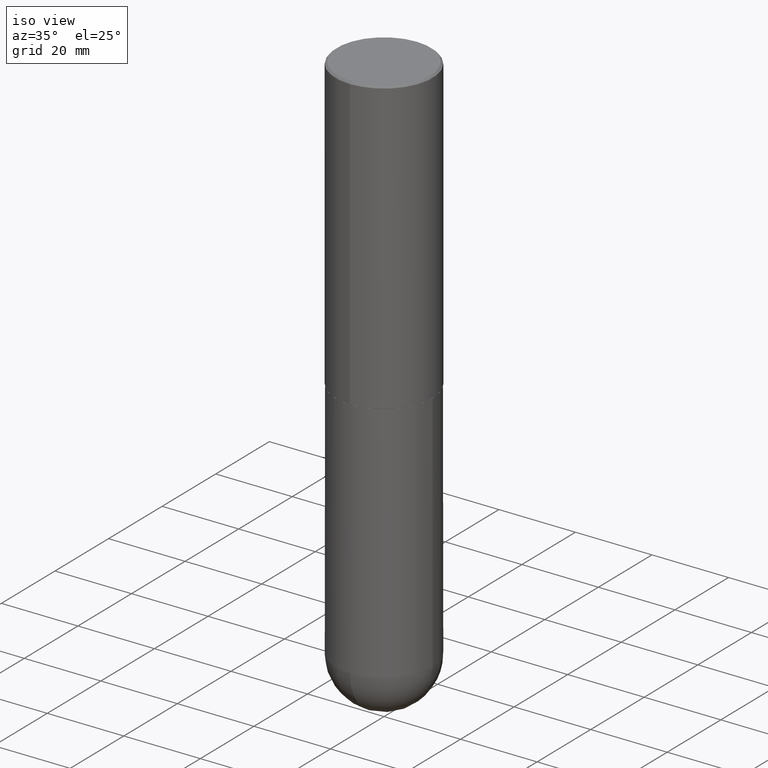
[diagram: clean part render]
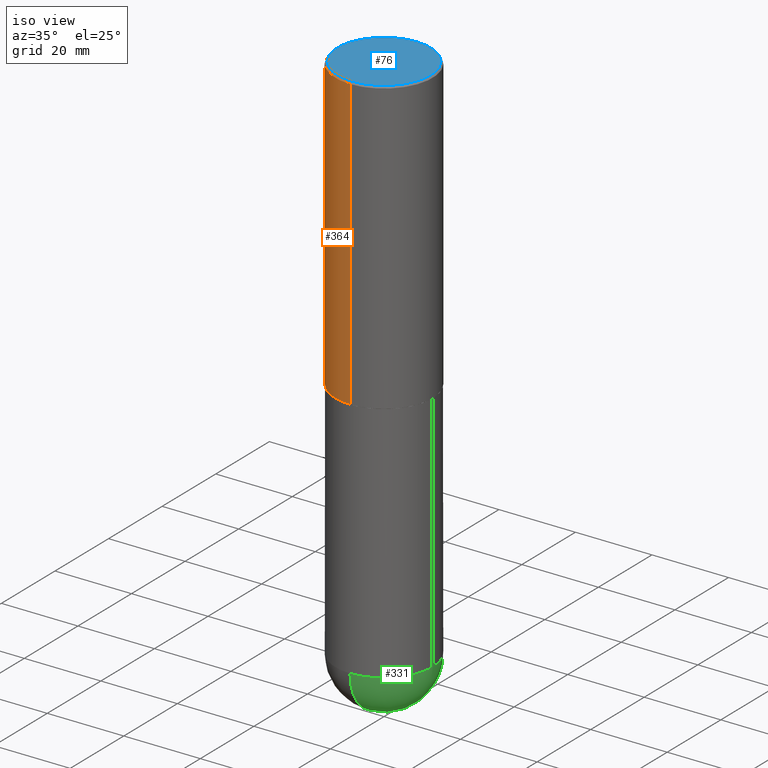
[diagram: same view with three faces highlighted in distinct colors, each labeled with its STEP entity id]
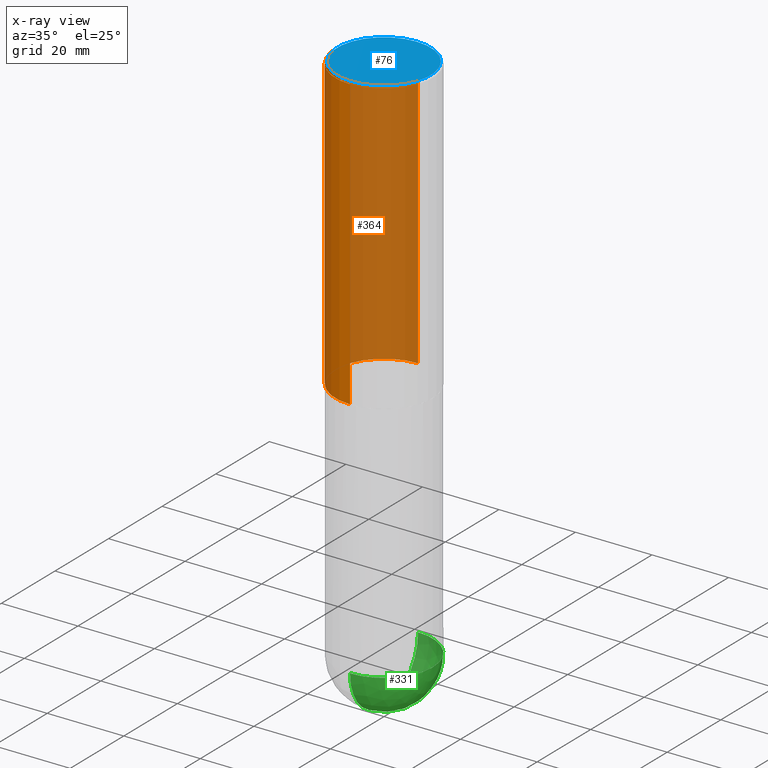
[diagram: x-ray of the same camera — body ghosted, the three highlighted faces saturated]
A machine part, iso view with three faces highlighted in distinct colors.
The next image is the same camera in x-ray (body ghosted, the three faces saturated) — at least one of them is partly hidden behind the body in this view.
Their STEP definitions:

[orange] entity #364 — the highlighted cylindrical surface (partial cylindrical patch) has radius 12.7 mm, axis along (-0, 0, 1).
#7 = CARTESIAN_POINT ( 'NONE',  ( 7.332693263445419070E-29, -1.047276793412986863E-14, -2.999000000000000554 ) ) ;
#18 = AXIS2_PLACEMENT_3D ( 'NONE', #7, #294, #231 ) ;
#28 = DIRECTION ( 'NONE',  ( -6.982962677686265922E-15, -1.000000000000000000, 3.491643216902136408E-15 ) ) ;
#29 = ORIENTED_EDGE ( 'NONE', *, *, #188, .T. ) ;
#32 = LINE ( 'NONE', #165, #176 ) ;
#64 = LINE ( 'NONE', #191, #343 ) ;
#87 = VERTEX_POINT ( 'NONE', #211 ) ;
#96 = FACE_OUTER_BOUND ( 'NONE', #220, .T. ) ;
#108 = CARTESIAN_POINT ( 'NONE',  ( 0.000000000000000000, 0.000000000000000000, 0.000000000000000000 ) ) ;
#135 = AXIS2_PLACEMENT_3D ( 'NONE', #225, #308, #28 ) ;
#165 = CARTESIAN_POINT ( 'NONE',  ( 3.552713678800501718E-15, 0.5000000000000002220, -1.746043336800578625E-15 ) ) ;
#174 = CARTESIAN_POINT ( 'NONE',  ( 3.552713678800539584E-15, 0.4999999999999900080, -2.999000000000001886 ) ) ;
#176 = VECTOR ( 'NONE', #379, 39.37007874015748143 ) ;
#188 = EDGE_CURVE ( 'NONE', #406, #199, #369, .T. ) ;
#191 = CARTESIAN_POINT ( 'NONE',  ( -3.491481338843134539E-15, -0.5000000000000002220, 1.746043336800578625E-15 ) ) ;
#194 = ORIENTED_EDGE ( 'NONE', *, *, #375, .F. ) ;
#197 = CYLINDRICAL_SURFACE ( 'NONE', #254, 0.5000000000000002220 ) ;
#199 = VERTEX_POINT ( 'NONE', #352 ) ;
#211 = CARTESIAN_POINT ( 'NONE',  ( 3.491481338843133355E-15, 0.4999999999999999445, -0.02000000000000185310 ) ) ;
#220 = EDGE_LOOP ( 'NONE', ( #309, #29, #330, #194 ) ) ;
#225 = CARTESIAN_POINT ( 'NONE',  ( 4.890092206365760820E-31, -6.984173347202349949E-17, -0.02000000000000010797 ) ) ;
#231 = DIRECTION ( 'NONE',  ( -6.982962677686265133E-15, -1.000000000000000000, 3.278217592397113101E-15 ) ) ;
#254 = AXIS2_PLACEMENT_3D ( 'NONE', #108, #283, #255 ) ;
#255 = DIRECTION ( 'NONE',  ( -6.982962677686265922E-15, -1.000000000000000000, 3.492086673601155672E-15 ) ) ;
#261 = VERTEX_POINT ( 'NONE', #341 ) ;
#278 = EDGE_CURVE ( 'NONE', #199, #261, #64, .T. ) ;
#282 = EDGE_CURVE ( 'NONE', #406, #87, #32, .T. ) ;
#283 = DIRECTION ( 'NONE',  ( -2.445046103182867255E-29, 3.492086673601156067E-15, 1.000000000000000000 ) ) ;
#294 = DIRECTION ( 'NONE',  ( -2.445046103182867255E-29, 3.492086673601156067E-15, 1.000000000000000000 ) ) ;
#308 = DIRECTION ( 'NONE',  ( -2.445046103182867255E-29, 3.492086673601156067E-15, 1.000000000000000000 ) ) ;
#309 = ORIENTED_EDGE ( 'NONE', *, *, #282, .F. ) ;
#313 = DIRECTION ( 'NONE',  ( -2.445046103182867535E-29, 3.492086673601156067E-15, 1.000000000000000000 ) ) ;
#324 = CIRCLE ( 'NONE', #135, 0.5000000000000000000 ) ;
#330 = ORIENTED_EDGE ( 'NONE', *, *, #278, .T. ) ;
#341 = CARTESIAN_POINT ( 'NONE',  ( -3.430248998885764992E-15, -0.5000000000000001110, -0.01999999999999835937 ) ) ;
#343 = VECTOR ( 'NONE', #313, 39.37007874015748143 ) ;
#352 = CARTESIAN_POINT ( 'NONE',  ( -3.491481338843062752E-15, -0.5000000000000108802, -2.998999999999998778 ) ) ;
#364 = ADVANCED_FACE ( 'NONE', ( #96 ), #197, .T. ) ;
#369 = CIRCLE ( 'NONE', #18, 0.5000000000000004441 ) ;
#375 = EDGE_CURVE ( 'NONE', #87, #261, #324, .T. ) ;
#379 = DIRECTION ( 'NONE',  ( -2.445046103182867535E-29, 3.492086673601156067E-15, 1.000000000000000000 ) ) ;
#406 = VERTEX_POINT ( 'NONE', #174 ) ;

[blue] entity #76 — the highlighted planar face has unit normal (0, -0, -1).
#10 = CARTESIAN_POINT ( 'NONE',  ( 3.351822085289415042E-15, 0.4800000000000010369, -2.216023152984338399E-15 ) ) ;
#14 = DIRECTION ( 'NONE',  ( 2.445046103182866975E-29, -3.492086673601156067E-15, -1.000000000000000000 ) ) ;
#26 = ORIENTED_EDGE ( 'NONE', *, *, #357, .T. ) ;
#31 = AXIS2_PLACEMENT_3D ( 'NONE', #69, #402, #106 ) ;
#34 = VERTEX_POINT ( 'NONE', #239 ) ;
#43 = PLANE ( 'NONE',  #377 ) ;
#61 = DIRECTION ( 'NONE',  ( -6.982962677686265922E-15, -1.000000000000000000, 3.492086673601155672E-15 ) ) ;
#67 = AXIS2_PLACEMENT_3D ( 'NONE', #371, #72, #61 ) ;
#69 = CARTESIAN_POINT ( 'NONE',  ( 2.639777152800000414E-44, -3.770207279351343955E-30, -1.079643099311558880E-15 ) ) ;
#72 = DIRECTION ( 'NONE',  ( -2.445046103182867255E-29, 3.492086673601156067E-15, 1.000000000000000000 ) ) ;
#76 = ADVANCED_FACE ( 'NONE', ( #114 ), #43, .F. ) ;
#80 = CIRCLE ( 'NONE', #31, 0.4800000000000010369 ) ;
#106 = DIRECTION ( 'NONE',  ( -6.982962677686265922E-15, -1.000000000000000000, 3.492086673601155672E-15 ) ) ;
#114 = FACE_OUTER_BOUND ( 'NONE', #276, .T. ) ;
#137 = VERTEX_POINT ( 'NONE', #305 ) ;
#144 = DIRECTION ( 'NONE',  ( 6.982962677686265922E-15, 1.000000000000000000, -3.492086673601156067E-15 ) ) ;
#209 = CIRCLE ( 'NONE', #67, 0.4800000000000010369 ) ;
#239 = CARTESIAN_POINT ( 'NONE',  ( 3.421651712066274001E-15, 0.4800000000000010369, -2.755844702640117248E-15 ) ) ;
#245 = EDGE_CURVE ( 'NONE', #137, #34, #209, .T. ) ;
#276 = EDGE_LOOP ( 'NONE', ( #26, #338 ) ) ;
#305 = CARTESIAN_POINT ( 'NONE',  ( -3.361644018908053211E-15, -0.4800000000000010369, 5.965585040169995854E-16 ) ) ;
#338 = ORIENTED_EDGE ( 'NONE', *, *, #245, .T. ) ;
#357 = EDGE_CURVE ( 'NONE', #34, #137, #80, .T. ) ;
#371 = CARTESIAN_POINT ( 'NONE',  ( 2.639777152800000414E-44, -3.770207279351343955E-30, -1.079643099311558880E-15 ) ) ;
#377 = AXIS2_PLACEMENT_3D ( 'NONE', #10, #14, #144 ) ;
#402 = DIRECTION ( 'NONE',  ( -2.445046103182867255E-29, 3.492086673601156067E-15, 1.000000000000000000 ) ) ;

[green] entity #331 — the highlighted spherical surface has radius 12.7 mm.
#4 = DIRECTION ( 'NONE',  ( -1.000000000000000000, 6.982962677686265922E-15, -4.883557194083112901E-29 ) ) ;
#23 = CIRCLE ( 'NONE', #356, 0.5000000000000000000 ) ;
#36 = CARTESIAN_POINT ( 'NONE',  ( 3.491481338843267462E-15, 0.4999999999999808487, -5.500000000000002665 ) ) ;
#46 = ORIENTED_EDGE ( 'NONE', *, *, #138, .F. ) ;
#51 = EDGE_CURVE ( 'NONE', #65, #159, #201, .T. ) ;
#54 = VERTEX_POINT ( 'NONE', #317 ) ;
#55 = AXIS2_PLACEMENT_3D ( 'NONE', #178, #342, #251 ) ;
#65 = VERTEX_POINT ( 'NONE', #296 ) ;
#101 = ORIENTED_EDGE ( 'NONE', *, *, #170, .T. ) ;
#131 = FACE_OUTER_BOUND ( 'NONE', #302, .T. ) ;
#133 = AXIS2_PLACEMENT_3D ( 'NONE', #146, #156, #387 ) ;
#136 = DIRECTION ( 'NONE',  ( 6.982962677686265922E-15, 1.000000000000000000, -4.370956789862816416E-15 ) ) ;
#138 = EDGE_CURVE ( 'NONE', #159, #54, #23, .T. ) ;
#146 = CARTESIAN_POINT ( 'NONE',  ( 1.311895865610436840E-28, -1.967732973177735475E-14, -5.500000000000000888 ) ) ;
#147 = CIRCLE ( 'NONE', #133, 0.5000000000000005551 ) ;
#152 = EDGE_CURVE ( 'NONE', #54, #314, #327, .T. ) ;
#156 = DIRECTION ( 'NONE',  ( 1.000000000000000000, -6.982962677686265922E-15, 4.883557194083112340E-29 ) ) ;
#159 = VERTEX_POINT ( 'NONE', #277 ) ;
#162 = DIRECTION ( 'NONE',  ( 1.000000000000000000, -6.982962677686270655E-15, 0.000000000000000000 ) ) ;
#170 = EDGE_CURVE ( 'NONE', #65, #314, #147, .T. ) ;
#178 = CARTESIAN_POINT ( 'NONE',  ( 1.311895865610436840E-28, -1.967732973177735475E-14, -5.500000000000000888 ) ) ;
#201 = CIRCLE ( 'NONE', #55, 0.5000000000000005551 ) ;
#213 = AXIS2_PLACEMENT_3D ( 'NONE', #273, #337, #162 ) ;
#218 = DIRECTION ( 'NONE',  ( -2.445468806185136597E-29, 3.491481338843145583E-15, 1.000000000000000000 ) ) ;
#226 = CARTESIAN_POINT ( 'NONE',  ( 1.345007843401825128E-28, -1.920314736363730603E-14, -5.500000000000000888 ) ) ;
#233 = ORIENTED_EDGE ( 'NONE', *, *, #152, .F. ) ;
#250 = CARTESIAN_POINT ( 'NONE',  ( 1.311895865610436840E-28, -1.967732973177735475E-14, -5.500000000000000888 ) ) ;
#251 = DIRECTION ( 'NONE',  ( -7.105427357601000281E-15, -1.000000000000000000, 0.000000000000000000 ) ) ;
#273 = CARTESIAN_POINT ( 'NONE',  ( 1.345007843401825128E-28, -1.920314736363730603E-14, -5.500000000000000888 ) ) ;
#277 = CARTESIAN_POINT ( 'NONE',  ( -3.552713678800369978E-15, -0.5000000000000196509, -5.499999999999999112 ) ) ;
#296 = CARTESIAN_POINT ( 'NONE',  ( 1.436307221642642309E-28, -2.139245423122024710E-14, -6.000000000000001776 ) ) ;
#302 = EDGE_LOOP ( 'NONE', ( #399, #101, #233, #46 ) ) ;
#307 = DIRECTION ( 'NONE',  ( 1.000000000000000000, -6.982962677686270655E-15, 0.000000000000000000 ) ) ;
#314 = VERTEX_POINT ( 'NONE', #36 ) ;
#317 = CARTESIAN_POINT ( 'NONE',  ( 0.5000000000000000000, -1.833027702892651007E-14, -5.500000000000000888 ) ) ;
#327 = CIRCLE ( 'NONE', #213, 0.5000000000000000000 ) ;
#331 = ADVANCED_FACE ( 'NONE', ( #131 ), #374, .T. ) ;
#337 = DIRECTION ( 'NONE',  ( -2.445468806185136597E-29, 3.491481338843145583E-15, 1.000000000000000000 ) ) ;
#342 = DIRECTION ( 'NONE',  ( -1.000000000000000000, 7.105427357601001070E-15, -4.926315508542082329E-29 ) ) ;
#356 = AXIS2_PLACEMENT_3D ( 'NONE', #226, #218, #307 ) ;
#374 = SPHERICAL_SURFACE ( 'NONE', #393, 0.5000000000000005551 ) ;
#387 = DIRECTION ( 'NONE',  ( 6.982962677686265922E-15, 1.000000000000000000, 0.000000000000000000 ) ) ;
#393 = AXIS2_PLACEMENT_3D ( 'NONE', #250, #4, #136 ) ;
#399 = ORIENTED_EDGE ( 'NONE', *, *, #51, .F. ) ;